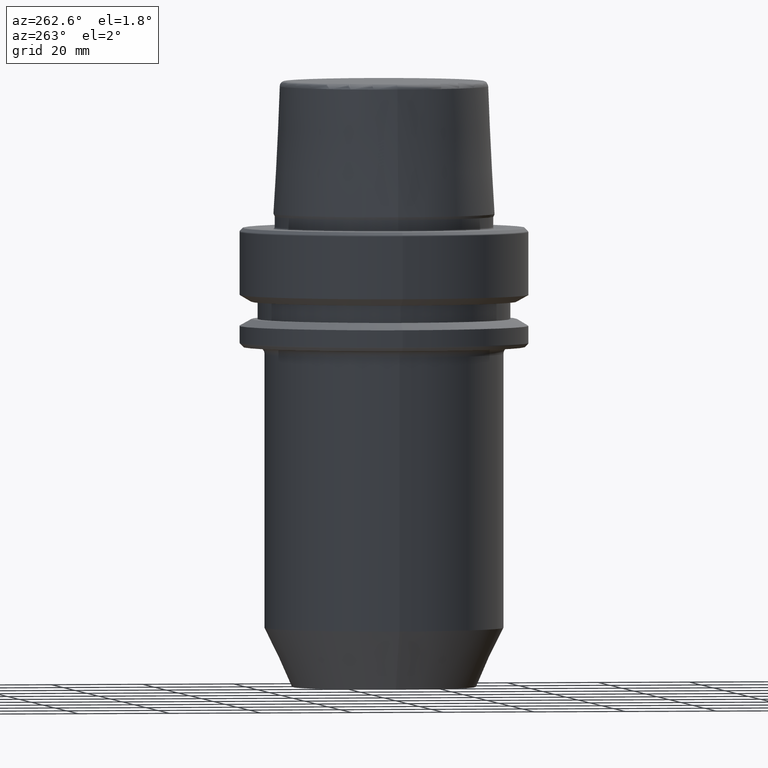
[diagram: clean part render]
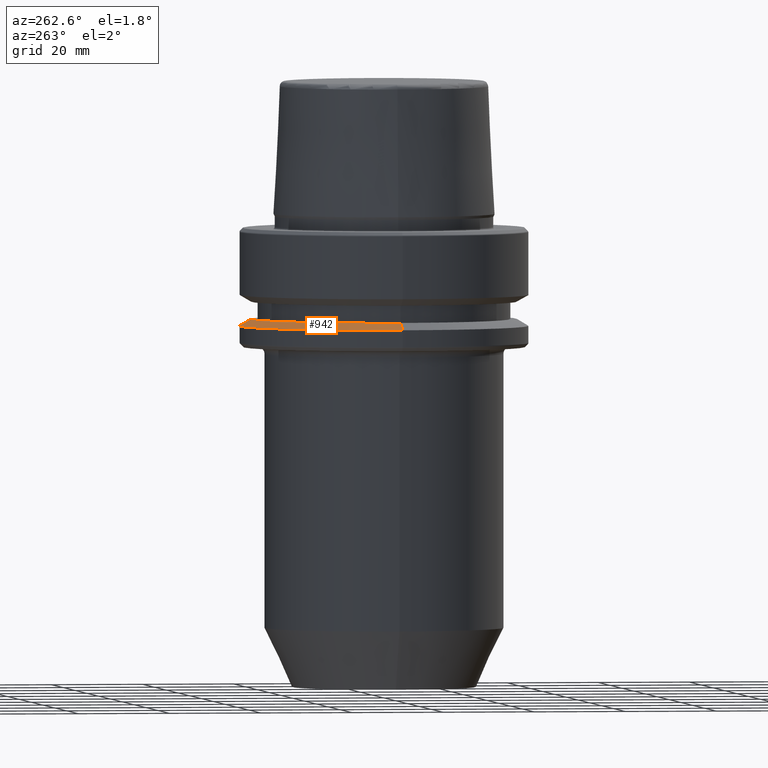
[diagram: same view with one face highlighted and labeled with its STEP entity id]
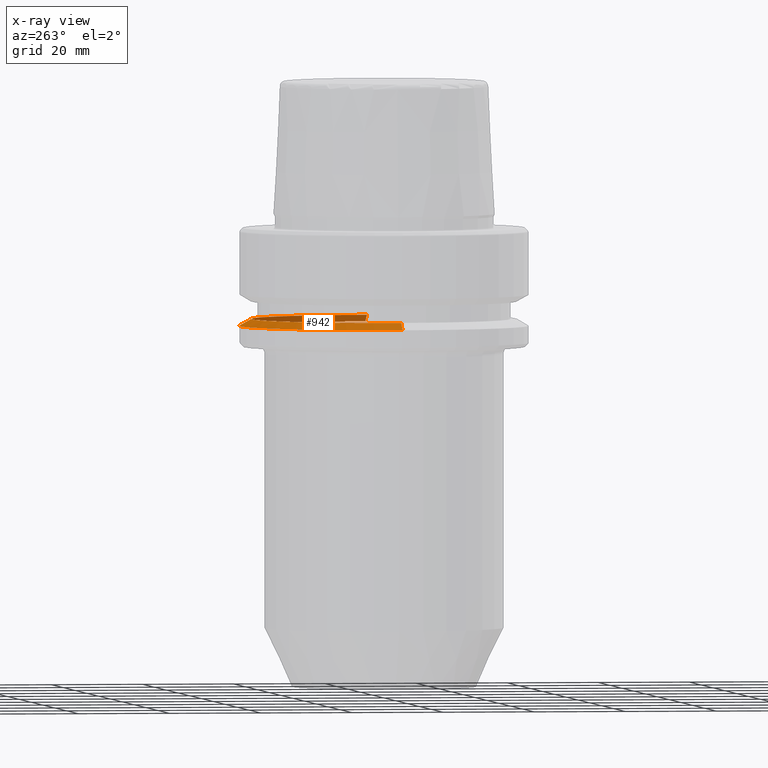
[diagram: x-ray of the same camera — body ghosted, the highlighted face saturated]
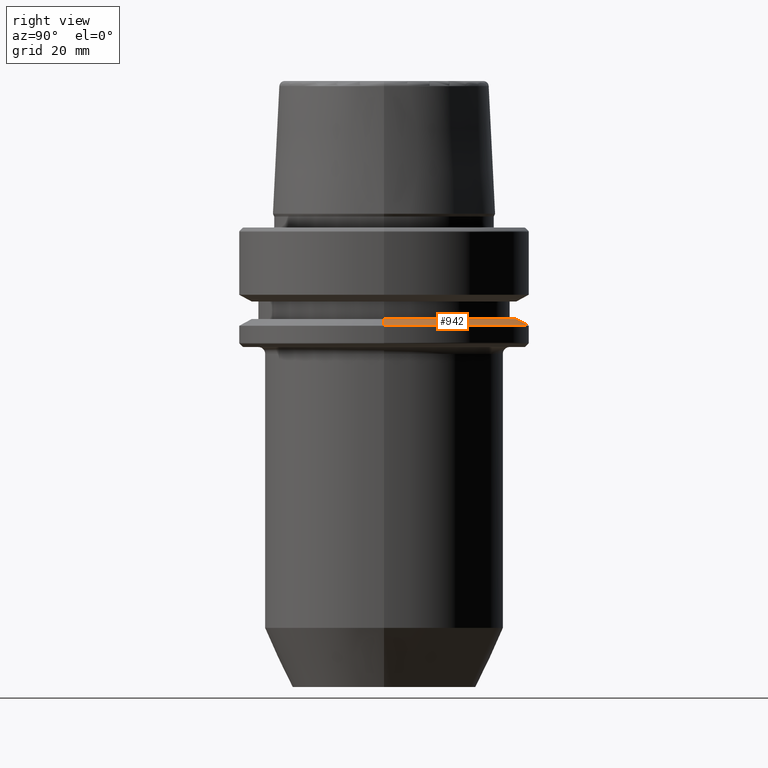
[diagram: same view with one face highlighted and labeled with its STEP entity id]
A machine part, auxiliary view. The second image highlights one B-rep face of the part: STEP entity #942.
The next image is the same camera in x-ray: the body ghosted, the highlighted face saturated — about 35% of this face is hidden behind the body in this view.
A second angle (right view) of the same face is appended — the face is thin or edge-on in the first view.
In plain terms, the highlighted conical surface has half-angle 60 deg.
Its self-contained STEP definition (entity closure, byte-faithful):
#3 = EDGE_CURVE ( 'NONE', #1222, #673, #134, .T. ) ;
#18 = AXIS2_PLACEMENT_3D ( 'NONE', #109, #1037, #157 ) ;
#75 = DIRECTION ( 'NONE',  ( -0.0000000000000000000, -0.0000000000000000000, 1.000000000000000000 ) ) ;
#78 = EDGE_CURVE ( 'NONE', #507, #401, #299, .T. ) ;
#108 = DIRECTION ( 'NONE',  ( -1.000000000000000000, 0.0000000000000000000, 0.0000000000000000000 ) ) ;
#109 = CARTESIAN_POINT ( 'NONE',  ( 0.0000000000000000000, 0.0000000000000000000, -19.90000000000001600 ) ) ;
#134 = CIRCLE ( 'NONE', #18, 28.94089653438085100 ) ;
#157 = DIRECTION ( 'NONE',  ( 1.000000000000000000, 0.0000000000000000000, 0.0000000000000000000 ) ) ;
#194 = VECTOR ( 'NONE', #821, 1000.000000000000100 ) ;
#269 = ORIENTED_EDGE ( 'NONE', *, *, #1101, .F. ) ;
#274 = AXIS2_PLACEMENT_3D ( 'NONE', #1035, #75, #753 ) ;
#299 = CIRCLE ( 'NONE', #274, 31.50000000000000000 ) ;
#301 = CARTESIAN_POINT ( 'NONE',  ( 28.94089653438085100, 3.700937523921292900E-015, -19.90000000000001600 ) ) ;
#326 = ORIENTED_EDGE ( 'NONE', *, *, #3, .F. ) ;
#348 = CARTESIAN_POINT ( 'NONE',  ( 0.0000000000000000000, 0.0000000000000000000, -21.37749907475931700 ) ) ;
#401 = VERTEX_POINT ( 'NONE', #1054 ) ;
#507 = VERTEX_POINT ( 'NONE', #590 ) ;
#511 = DIRECTION ( 'NONE',  ( 0.8660254037844410400, 1.060575238724909700E-016, -0.4999999999999958400 ) ) ;
#523 = CARTESIAN_POINT ( 'NONE',  ( -31.50000000000000000, 0.0000000000000000000, -21.37749907475931700 ) ) ;
#553 = CARTESIAN_POINT ( 'NONE',  ( 31.50000000000000000, 3.857637417314162700E-015, -21.37749907475931700 ) ) ;
#554 = EDGE_CURVE ( 'NONE', #1222, #507, #924, .T. ) ;
#590 = CARTESIAN_POINT ( 'NONE',  ( 31.50000000000000000, 0.0000000000000000000, -21.37749907475931700 ) ) ;
#603 = EDGE_LOOP ( 'NONE', ( #326, #701, #621, #269 ) ) ;
#621 = ORIENTED_EDGE ( 'NONE', *, *, #78, .T. ) ;
#634 = DIRECTION ( 'NONE',  ( 0.0000000000000000000, 0.0000000000000000000, -1.000000000000000000 ) ) ;
#673 = VERTEX_POINT ( 'NONE', #826 ) ;
#701 = ORIENTED_EDGE ( 'NONE', *, *, #554, .T. ) ;
#753 = DIRECTION ( 'NONE',  ( 1.000000000000000000, 0.0000000000000000000, 0.0000000000000000000 ) ) ;
#774 = FACE_OUTER_BOUND ( 'NONE', #603, .T. ) ;
#821 = DIRECTION ( 'NONE',  ( -0.8660254037844410400, 0.0000000000000000000, -0.4999999999999958400 ) ) ;
#826 = CARTESIAN_POINT ( 'NONE',  ( -28.94089653438085100, 0.0000000000000000000, -19.90000000000001600 ) ) ;
#923 = VECTOR ( 'NONE', #511, 1000.000000000000100 ) ;
#924 = LINE ( 'NONE', #553, #923 ) ;
#942 = ADVANCED_FACE ( 'NONE', ( #774 ), #1061, .T. ) ;
#1006 = AXIS2_PLACEMENT_3D ( 'NONE', #348, #634, #108 ) ;
#1035 = CARTESIAN_POINT ( 'NONE',  ( 0.0000000000000000000, 0.0000000000000000000, -21.37749907475931700 ) ) ;
#1037 = DIRECTION ( 'NONE',  ( -0.0000000000000000000, -0.0000000000000000000, 1.000000000000000000 ) ) ;
#1054 = CARTESIAN_POINT ( 'NONE',  ( -31.50000000000000000, 3.857637417314162700E-015, -21.37749907475931700 ) ) ;
#1061 = CONICAL_SURFACE ( 'NONE', #1006, 31.50000000000000000, 1.047197551196602500 ) ;
#1101 = EDGE_CURVE ( 'NONE', #673, #401, #1243, .T. ) ;
#1222 = VERTEX_POINT ( 'NONE', #301 ) ;
#1243 = LINE ( 'NONE', #523, #194 ) ;